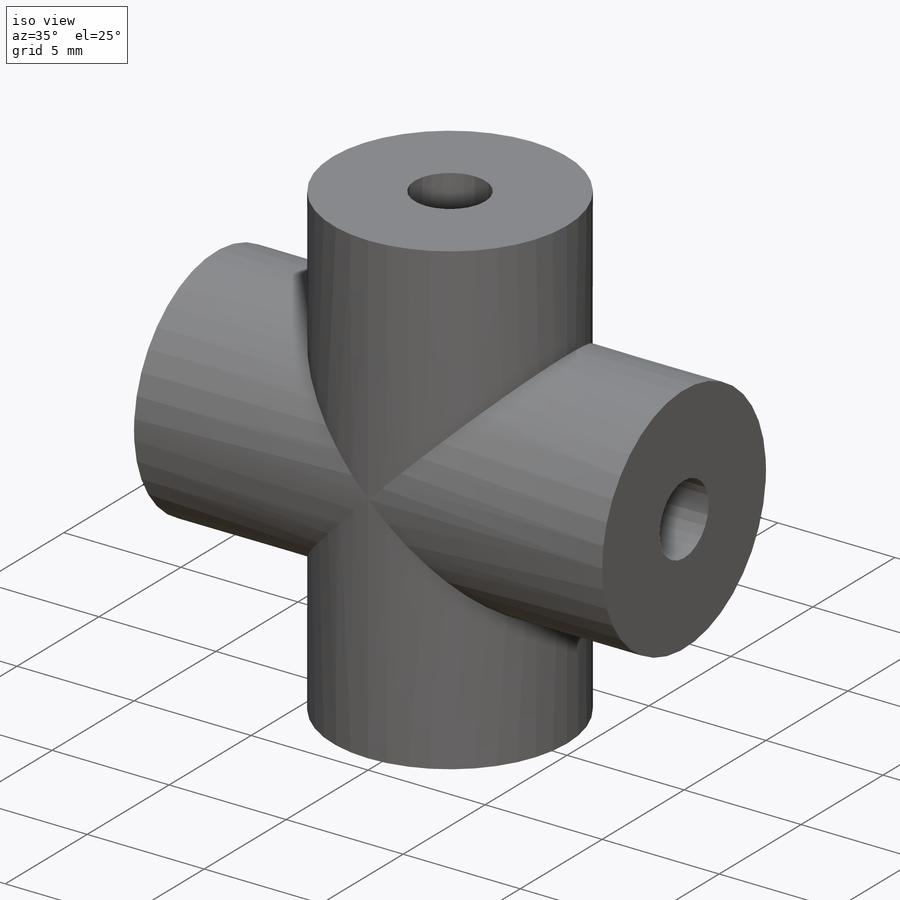
[diagram: iso view]
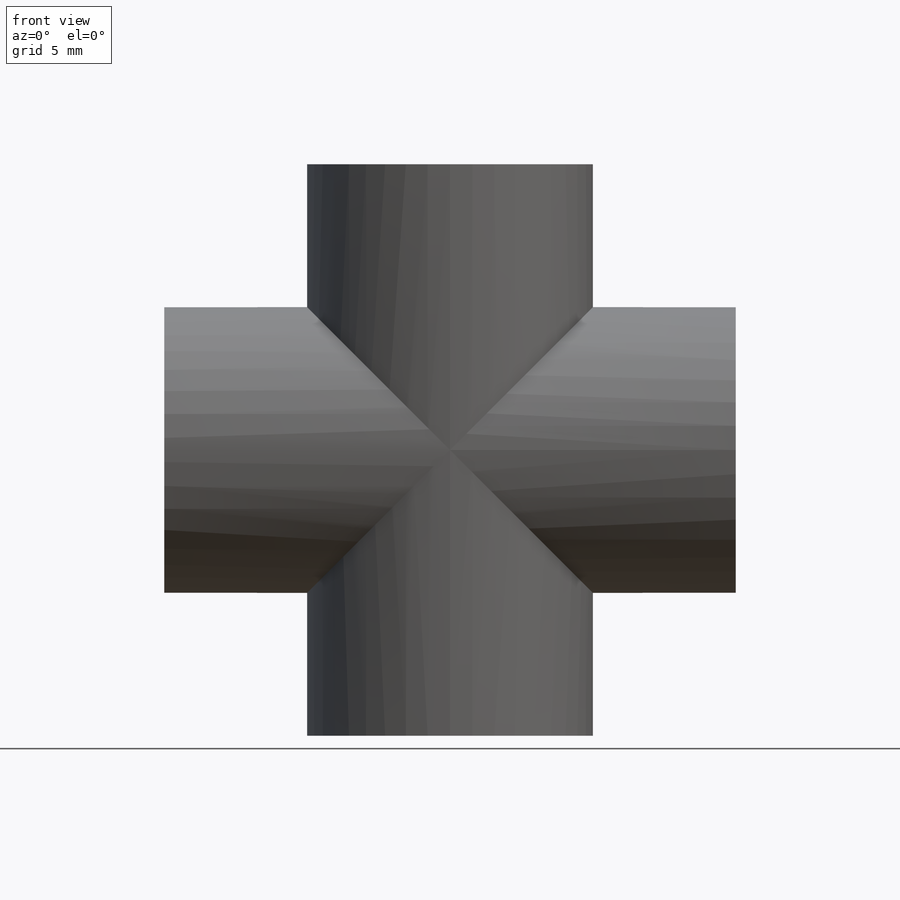
[diagram: front view]
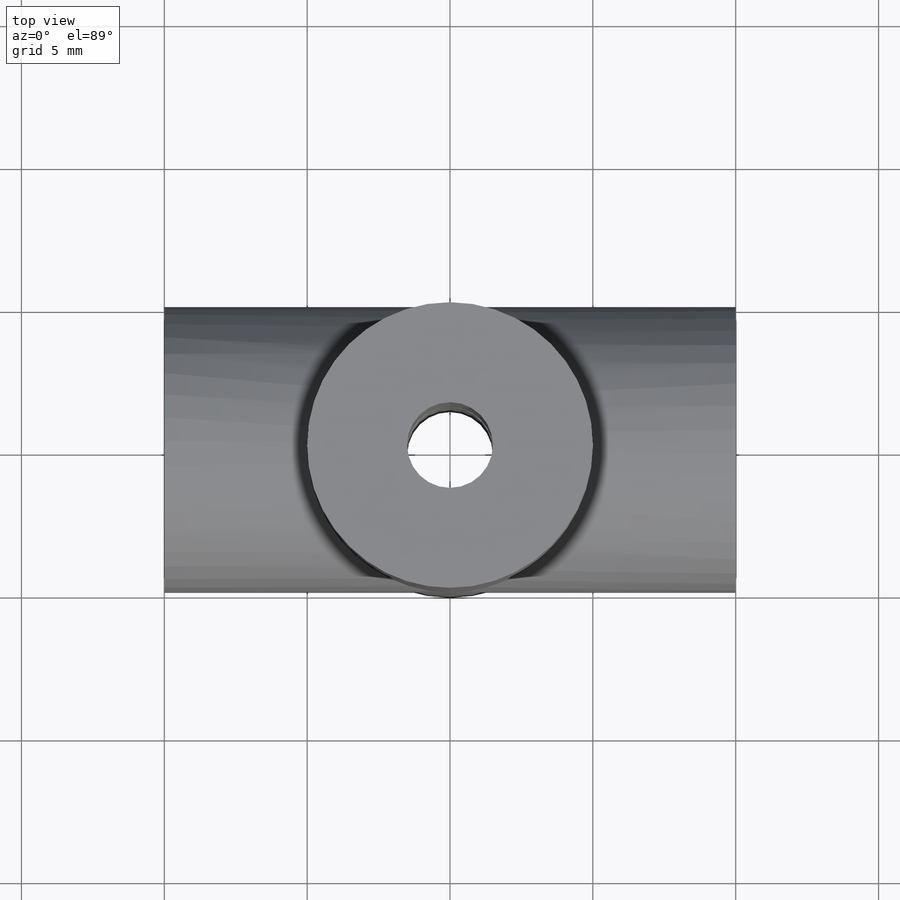
[diagram: top view]
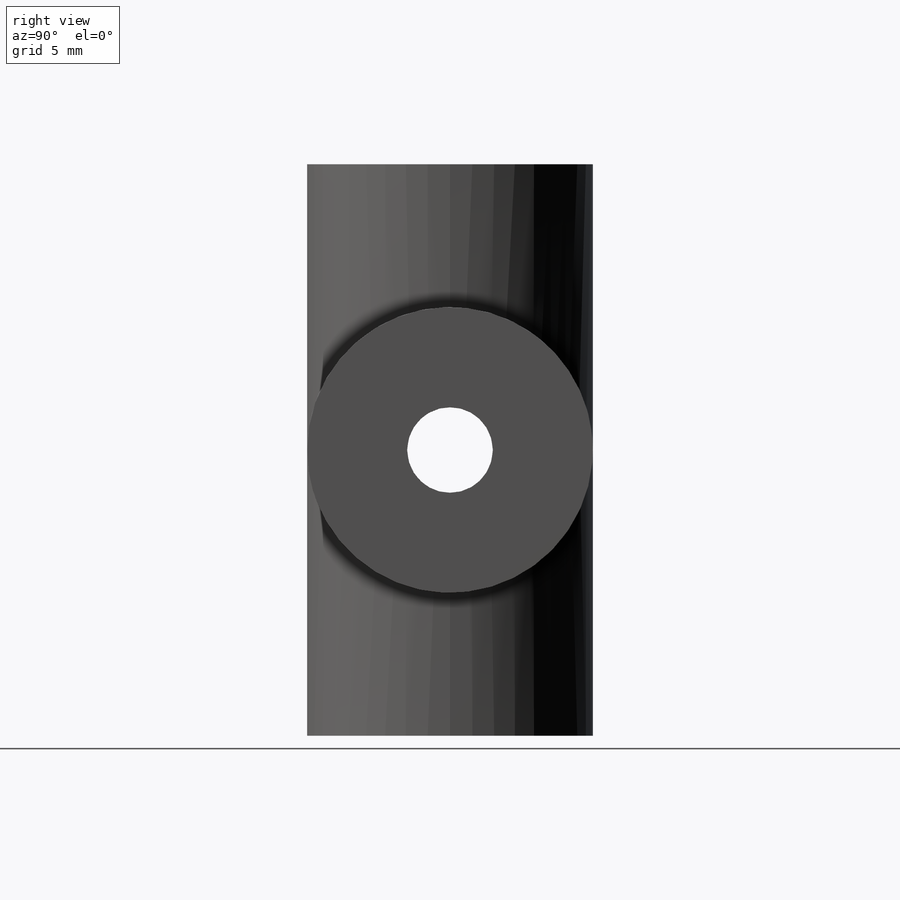
[diagram: right view]
SOLIDWORKS PART (.sldprt)
format: sldprt  version: not decoded by parser v0  size: 295,424 bytes
history: native  units: mm
features: sketch x7, extrude x3, hole x2, material x1, fillet x1 (+12 scaffold rows collapsed)
feature tree (26):
  scaffold x12  (default folders/planes/origin — collapsed)
  material  "Material <not specified>"
  sketch  "Sketch1"  dims[D1=10.0mm D2=10.0mm]
  extrude  "Boss-Extrude1"  Depth=20mm
  sketch  "Sketch2"  dims[D3=10.0mm D1=10.0mm D2=5.0mm]
  extrude  "Boss-Extrude2"  Depth=5mm
  sketch  "Sketch3"  dims[D3=10.0mm D1=10.0mm D2=5.0mm]
  extrude  "Boss-Extrude3"  Depth=5mm
  fillet  "Fillet1"  Radius=5mm
  hole  "Ø3.0mm Dowel Hole1"  Diameter=3mm Depth=20mm
  sketch  "Sketch5"  dims[D1=5.0mm D2=5.0mm]
  sketch  "Sketch4"  dims[hole-wizard template sketch: 60 standard entries collapsed; hole parameters kept: c18.Thru Hole Depth=20.0mm]
  hole  "Ø3.0mm Dowel Hole2"  Diameter=3mm Depth=20mm
  sketch  "Sketch7"  dims[D1=5.0mm D2=5.0mm]
  sketch  "Sketch6"  dims[hole-wizard template sketch: 60 standard entries collapsed; hole parameters kept: c18.Thru Hole Depth=20.0mm]
decode coverage: 13 of 13 modeling features carry decoded parameters
note: ~ marks probable driven/reference dimensions
note: suppression state not decoded; provenance and decode notes live in map.json
